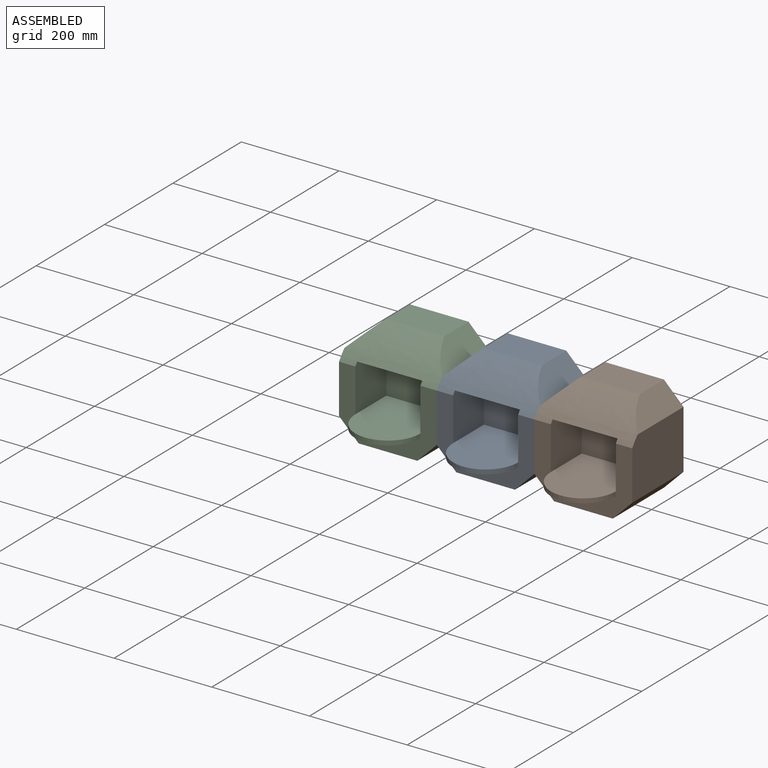
[diagram: assembled view]
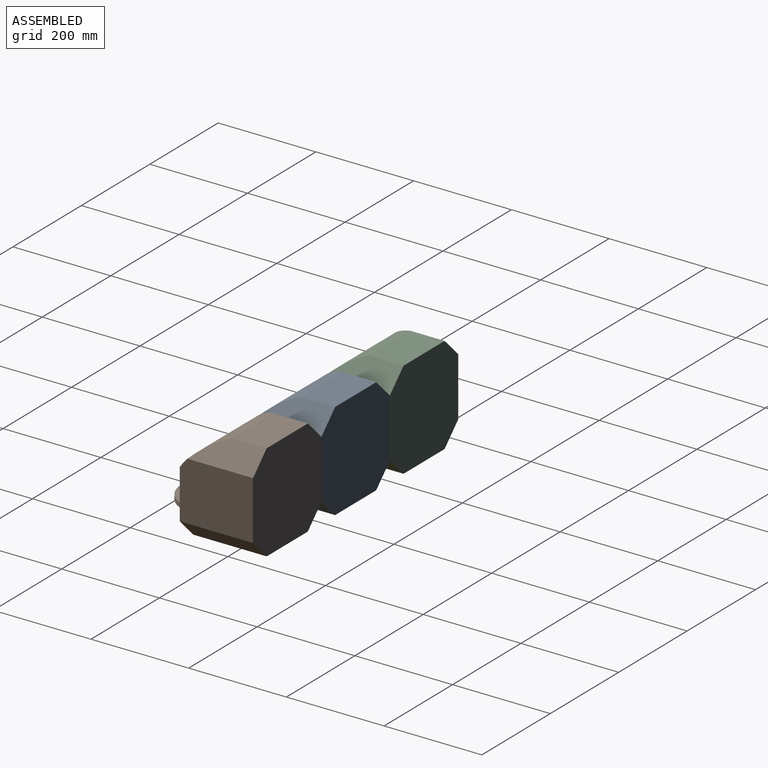
[diagram: assembled view, second angle]
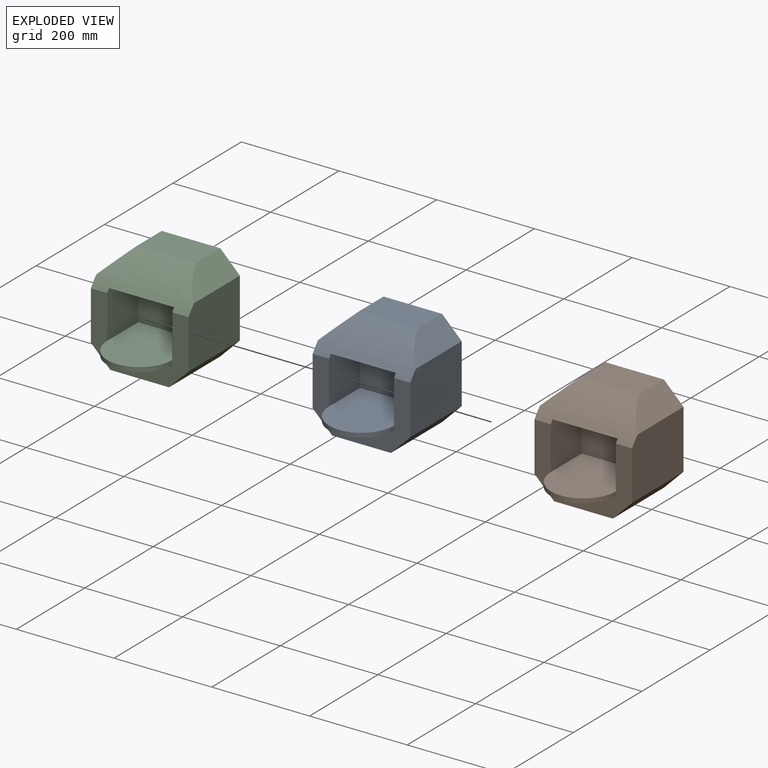
[diagram: exploded view]
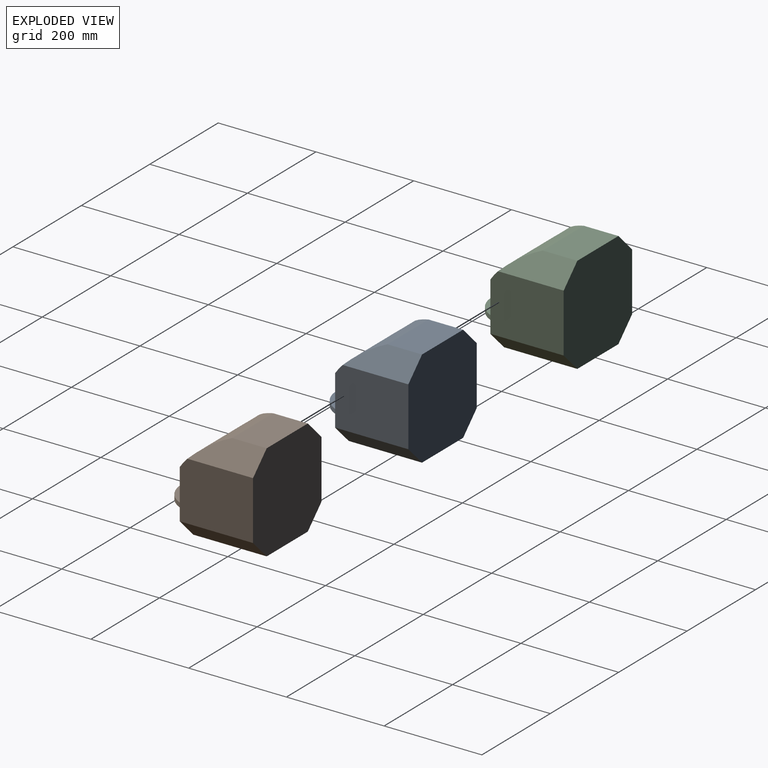
[diagram: exploded view, second angle]
ASSEMBLY  parts=3 mates=2
PART A: 18 faces, bbox 200x216.5x200 mm
  f0: plane 150.12x120.12mm, normal (1,0,0), area 17857.5mm2, adj f4,f5,f6,f9,f15
  f1: plane 120x70.99mm, normal (0,0,1), area 8519.1mm2, adj f5,f8,f9,f15
  f2: plane 150.12x120.12mm, normal (-1,0,0), area 17857.5mm2, adj f4,f5,f7,f8,f15
  f3: plane 150x120mm, normal (0,0,-1), area 18000mm2, adj f4,f5,f6,f7
  f4: plane 200x140.51mm, normal (0,-1,0), area 13557.9mm2, adj f0,f2,f3,f6,f7,f10,f12,f15
  f5: plane 200x200mm, normal (0,1,0), area 36800mm2, adj f0,f1,f2,f3,f6,f7,f8,f9
  f6: plane 150x40mm, normal (0.71,0,-0.71), area 8485.3mm2, adj f0,f3,f4,f5
  f7: plane 150x40mm, normal (-0.71,0,-0.71), area 8485.3mm2, adj f2,f3,f4,f5
  f8: plane 134.37x40mm, normal (-0.71,0,0.71), area 6121.5mm2, adj f1,f2,f5,f15
  f9: plane 134.37x40mm, normal (0.71,0,0.71), area 6121.5mm2, adj f0,f1,f5,f15
  f10: plane 95.6x90.02mm, normal (-1,0,0), area 8584.2mm2, adj f4,f11,f13,f14,f15
  f11: plane 133.03x84.87mm, normal (0,0,-1), area 11289.9mm2, adj f10,f12,f14,f15
  f12: plane 95.6x90.02mm, normal (1,0,0), area 8584.2mm2, adj f4,f11,f13,f14,f15
  f13: plane 156.52x133.03mm, normal (0,0,1), area 18922.8mm2, adj f10,f12,f14,f16
  f14: plane 133.03x95.58mm, normal (0,-1,0), area 12715.5mm2, adj f10,f11,f12,f13
  f15: extruded ~200x79.01mm, area 15545.4mm2, adj f0,f1,f2,f4,f8,f9,f10,f11
  f16: cylinder r=66.52mm len=133.03mm, axis (0,0,1), area 1880.7mm2, adj f4,f13,f17
  f17: plane 133.03x66.52mm, normal (0,0,-1), area 6949.8mm2, adj f4,f16
PART B: same geometry as A
PART C: same geometry as A
PLACE A t=(119.54,-9.62,5.37)mm
PLACE B t=(319.54,-9.62,5.37)mm
PLACE C t=(-80.46,-9.62,5.37)mm fixed
MATE fastened A.f0 <-> B.f2  axis (1,0,0) through (219.54,-9.06,4.94)mm
MATE fastened C.f0 <-> A.f2  axis (1,0,0) through (19.54,-9.06,4.94)mm
